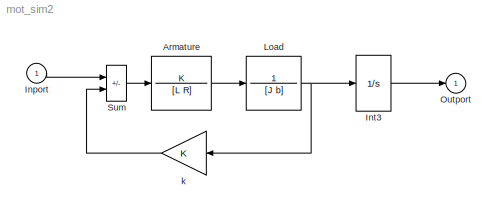
MODEL mot_sim2
KIND model
CONFIG AbsTol = 1e-3
CONFIG FixedStep = auto
CONFIG MaxStep = 0.1
CONFIG MinStep = auto
CONFIG RelTol = 1e-3
CONFIG Solver = ode45
CONFIG SolverMode = SingleTasking
CONFIG StartTime = 0.0
CONFIG StopTime = 3
BLOCK [Gain]  k 
  Gain = K
  Multiplication = Element-wise(K.*u)
  SaturateOnIntegerOverflow = on
BLOCK [TransferFcn] Armature
  AbsoluteTolerance = auto
  Denominator = [L R]
  Numerator = K
  Realization = auto
BLOCK [Inport] Inport
  Interpolate = on
  LatchInput = off
  Port = 1
BLOCK [Integrator] Int3
  AbsoluteTolerance = auto
  ExternalReset = none
  InitialCondition = 0
  InitialConditionSource = internal
  LimitOutput = off
  LowerSaturationLimit = -inf
  Ports = [1, 1]
  ShowSaturationPort = off
  ShowStatePort = off
  UpperSaturationLimit = inf
BLOCK [TransferFcn] Load
  AbsoluteTolerance = auto
  Denominator = [J b]
  Numerator = 1
  Realization = auto
BLOCK [Outport] Outport
  InitialOutput = 0
  OutputWhenDisabled = held
  Port = 1
BLOCK [Sum] Sum
  IconShape = rectangular
  Inputs = +-
  Ports = [2, 1]
  SaturateOnIntegerOverflow = on
LINE  k :1 -> Sum:2
LINE Armature:1 -> Load:1
LINE Inport:1 -> Sum:1
LINE Int3:1 -> Outport:1
NET Load:1 ->  k :1, Int3:1
LINE Sum:1 -> Armature:1
note: NET lines group one-source signal fan-out (src -> all destinations, sorted); 1:1 wires keep LINE
